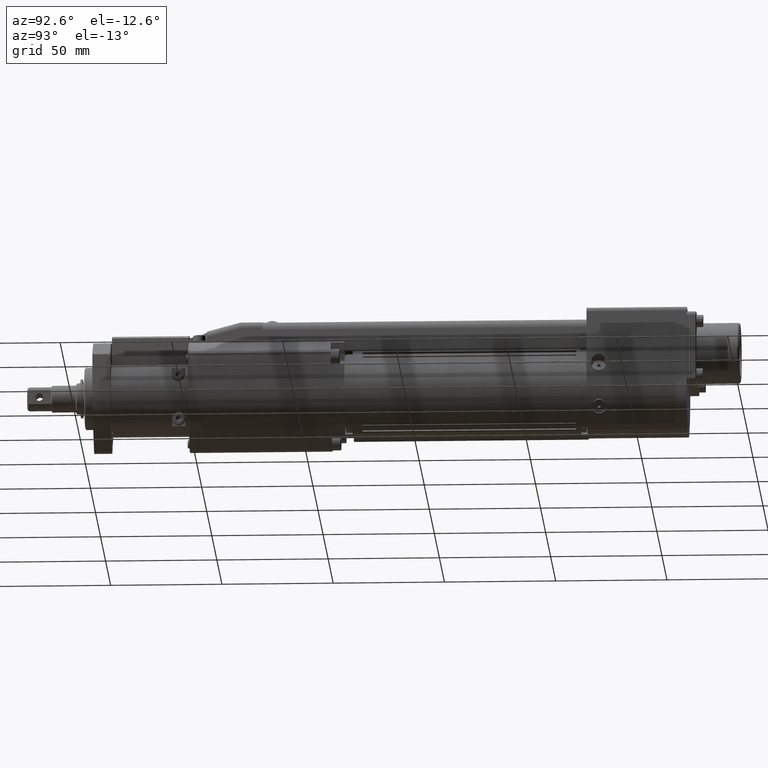
[diagram: clean part render]
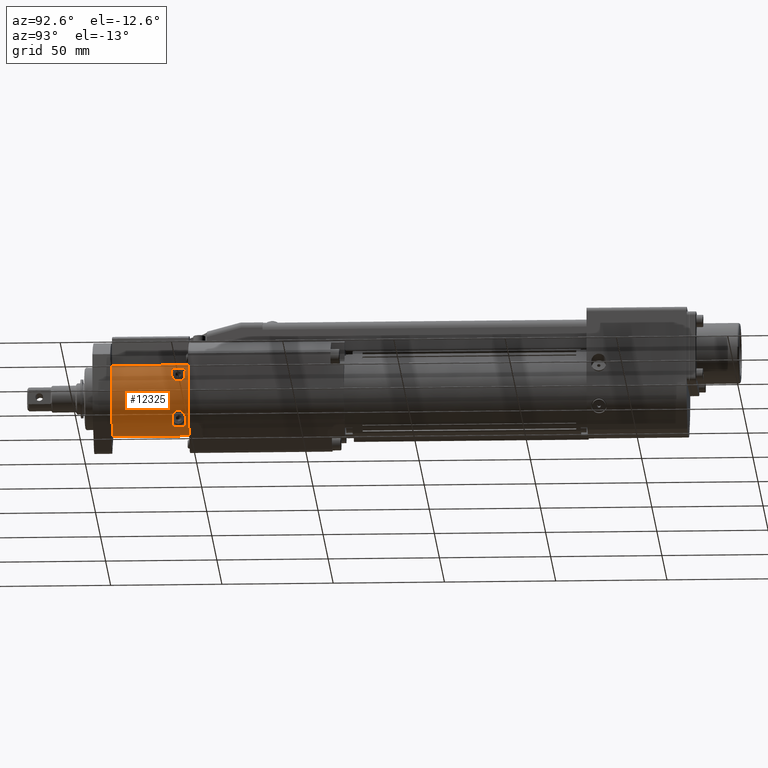
[diagram: same view with one face highlighted and labeled with its STEP entity id]
A machine part, auxiliary view. The second image highlights one B-rep face of the part: STEP entity #12325.
In plain terms, the highlighted cylindrical surface (partial cylindrical patch) has radius 17.5 mm, axis along (-0, 1, 0).
Its self-contained STEP definition (entity closure, byte-faithful):
#275=FACE_BOUND('',#2129,.T.);
#276=FACE_BOUND('',#2130,.T.);
#314=B_SPLINE_CURVE_WITH_KNOTS('',3,(#19529,#19530,#19531,#19532,#19533,
#19534,#19535,#19536,#19537,#19538,#19539,#19540,#19541,#19542,#19543,#19544,
#19545,#19546),.UNSPECIFIED.,.F.,.F.,(4,2,2,2,2,2,2,2,4),(0.593122453366662,
0.732736817292458,0.872351181218255,0.990238590093944,1.10812599896963,
1.21881461251213,1.32950322605462,1.47631867492946,1.6231341238043),
 .UNSPECIFIED.);
#315=B_SPLINE_CURVE_WITH_KNOTS('',3,(#19558,#19559,#19560,#19561,#19562,
#19563,#19564,#19565,#19566,#19567,#19568,#19569,#19570,#19571,#19572,#19573,
#19574,#19575,#19576),.UNSPECIFIED.,.F.,.F.,(4,2,2,2,3,2,2,2,4),(-0.465745547031507,
-0.345290531737387,-0.224835516443268,-0.112417758221634,0.,0.113876091804133,
0.227752183608267,0.346748738347812,0.465745293087357),.UNSPECIFIED.);
#628=CIRCLE('',#13280,17.5);
#649=CIRCLE('',#13346,17.5);
#650=CIRCLE('',#13348,17.5);
#652=CIRCLE('',#13352,17.5);
#653=CIRCLE('',#13354,17.5);
#654=CIRCLE('',#13355,17.5);
#967=CYLINDRICAL_SURFACE('',#13353,17.5);
#1359=FACE_OUTER_BOUND('',#2128,.T.);
#2128=EDGE_LOOP('',(#8972,#8973,#8974,#8975));
#2129=EDGE_LOOP('',(#8976,#8977,#8978,#8979));
#2130=EDGE_LOOP('',(#8980,#8981,#8982,#8983));
#2576=LINE('',#17578,#3610);
#3066=LINE('',#19554,#4100);
#3067=LINE('',#19557,#4101);
#3068=LINE('',#19579,#4102);
#3610=VECTOR('',#14043,10.);
#4100=VECTOR('',#15689,10.);
#4101=VECTOR('',#15692,10.);
#4102=VECTOR('',#15695,10.);
#4657=VERTEX_POINT('',#17575);
#4658=VERTEX_POINT('',#17577);
#5202=VERTEX_POINT('',#19341);
#5203=VERTEX_POINT('',#19343);
#5250=VERTEX_POINT('',#19515);
#5251=VERTEX_POINT('',#19519);
#5254=VERTEX_POINT('',#19526);
#5255=VERTEX_POINT('',#19528);
#5256=VERTEX_POINT('',#19549);
#5257=VERTEX_POINT('',#19553);
#5258=VERTEX_POINT('',#19555);
#5259=VERTEX_POINT('',#19577);
#5771=EDGE_CURVE('',#4657,#4658,#2576,.T.);
#6525=EDGE_CURVE('',#5202,#5203,#628,.T.);
#6611=EDGE_CURVE('',#4658,#5250,#649,.T.);
#6613=EDGE_CURVE('',#5251,#4657,#650,.T.);
#6617=EDGE_CURVE('',#5254,#5255,#314,.T.);
#6619=EDGE_CURVE('',#5256,#5254,#652,.T.);
#6621=EDGE_CURVE('',#5257,#5202,#3066,.T.);
#6622=EDGE_CURVE('',#5258,#5257,#653,.T.);
#6623=EDGE_CURVE('',#5258,#5203,#3067,.T.);
#6624=EDGE_CURVE('',#5250,#5251,#315,.T.);
#6625=EDGE_CURVE('',#5255,#5259,#654,.T.);
#6626=EDGE_CURVE('',#5259,#5256,#3068,.T.);
#8972=ORIENTED_EDGE('',*,*,#6621,.F.);
#8973=ORIENTED_EDGE('',*,*,#6622,.F.);
#8974=ORIENTED_EDGE('',*,*,#6623,.T.);
#8975=ORIENTED_EDGE('',*,*,#6525,.F.);
#8976=ORIENTED_EDGE('',*,*,#6624,.F.);
#8977=ORIENTED_EDGE('',*,*,#6611,.F.);
#8978=ORIENTED_EDGE('',*,*,#5771,.F.);
#8979=ORIENTED_EDGE('',*,*,#6613,.F.);
#8980=ORIENTED_EDGE('',*,*,#6625,.F.);
#8981=ORIENTED_EDGE('',*,*,#6617,.F.);
#8982=ORIENTED_EDGE('',*,*,#6619,.F.);
#8983=ORIENTED_EDGE('',*,*,#6626,.F.);
#12325=ADVANCED_FACE('',(#1359,#275,#276),#967,.T.);
#13280=AXIS2_PLACEMENT_3D('',#19344,#15477,#15478);
#13346=AXIS2_PLACEMENT_3D('',#19516,#15668,#15669);
#13348=AXIS2_PLACEMENT_3D('',#19520,#15673,#15674);
#13352=AXIS2_PLACEMENT_3D('',#19550,#15684,#15685);
#13353=AXIS2_PLACEMENT_3D('',#19552,#15687,#15688);
#13354=AXIS2_PLACEMENT_3D('',#19556,#15690,#15691);
#13355=AXIS2_PLACEMENT_3D('',#19578,#15693,#15694);
#14043=DIRECTION('',(3.46944695195361E-17,-1.,-2.01894342626943E-17));
#15477=DIRECTION('center_axis',(0.,1.,0.));
#15478=DIRECTION('ref_axis',(0.702857142857143,3.87466268240358E-17,-0.711331031752934));
#15668=DIRECTION('center_axis',(-3.46944695195362E-17,1.,-2.01855170662337E-16));
#15669=DIRECTION('ref_axis',(0.702857142857143,3.87466268240358E-17,-0.711331031752934));
#15673=DIRECTION('center_axis',(3.46944695195362E-17,-1.,3.12877473124853E-16));
#15674=DIRECTION('ref_axis',(0.702857142857143,3.87466268240358E-17,-0.711331031752934));
#15684=DIRECTION('center_axis',(3.46944695195363E-17,-1.,5.34922078049884E-16));
#15685=DIRECTION('ref_axis',(0.702857142857143,3.87466268240358E-17,-0.711331031752934));
#15687=DIRECTION('center_axis',(-3.46944695195361E-17,1.,2.01894342626943E-17));
#15688=DIRECTION('ref_axis',(0.702857142857143,3.87466268240358E-17,-0.711331031752934));
#15689=DIRECTION('',(-3.46944695195361E-17,1.,2.01894342626943E-17));
#15690=DIRECTION('center_axis',(3.46944695195361E-17,-1.,-2.01894342626943E-17));
#15691=DIRECTION('ref_axis',(0.702857142857143,3.87466268240358E-17,-0.711331031752934));
#15692=DIRECTION('',(-3.46944695195361E-17,1.,2.01894342626943E-17));
#15693=DIRECTION('center_axis',(-3.46944695195361E-17,1.,2.01894342626943E-17));
#15694=DIRECTION('ref_axis',(0.702857142857143,3.87466268240358E-17,-0.711331031752934));
#15695=DIRECTION('',(-3.46944695195361E-17,1.,2.01894342626943E-17));
#17575=CARTESIAN_POINT('',(14.,45.5,10.5));
#17577=CARTESIAN_POINT('',(14.,39.5,10.5));
#17578=CARTESIAN_POINT('',(14.,12.5,10.5));
#19341=CARTESIAN_POINT('',(12.3,47.,12.4482930556763));
#19343=CARTESIAN_POINT('',(0.300000000000024,47.,-17.4974283824795));
#19344=CARTESIAN_POINT('Origin',(2.77555756156289E-14,47.,2.33731163078971E-16));
#19515=CARTESIAN_POINT('',(16.0390149323455,39.5,7.));
#19516=CARTESIAN_POINT('Origin',(2.80157841370254E-14,39.5,8.23104061087636E-17));
#19519=CARTESIAN_POINT('',(16.0390149323455,45.5,7.));
#19520=CARTESIAN_POINT('Origin',(2.78076173199082E-14,45.5,2.0344701168493E-16));
#19526=CARTESIAN_POINT('',(12.737739202857,45.5,-12.));
#19528=CARTESIAN_POINT('',(12.737739202857,39.5,-12.));
#19529=CARTESIAN_POINT('Ctrl Pts',(12.737739202857,45.5,-12.));
#19530=CARTESIAN_POINT('Ctrl Pts',(13.0568577489731,45.5,-11.6612625987315));
#19531=CARTESIAN_POINT('Ctrl Pts',(13.388375143957,45.4394265194131,-11.2795137070453));
#19532=CARTESIAN_POINT('Ctrl Pts',(13.9810249050007,45.1487708471428,-10.5359840172819));
#19533=CARTESIAN_POINT('Ctrl Pts',(14.2425258971573,44.9175740760073,-10.174933388888));
#19534=CARTESIAN_POINT('Ctrl Pts',(14.6161987054871,44.3711699728817,-9.62852928576239));
#19535=CARTESIAN_POINT('Ctrl Pts',(14.7642572732064,44.0443375174269,-9.39686144415425));
#19536=CARTESIAN_POINT('Ctrl Pts',(14.9598126959281,43.3052195385203,-9.08230694812046));
#19537=CARTESIAN_POINT('Ctrl Pts',(15.0083310198037,42.8929580295856,-9.));
#19538=CARTESIAN_POINT('Ctrl Pts',(15.0083310198037,42.1310379548584,-9.));
#19539=CARTESIAN_POINT('Ctrl Pts',(14.9654351358068,41.7416566613897,-9.0726602675648));
#19540=CARTESIAN_POINT('Ctrl Pts',(14.7910941088554,41.0357211481776,-9.35419424728931));
#19541=CARTESIAN_POINT('Ctrl Pts',(14.6588832619237,40.7191442555167,-9.56253617057018));
#19542=CARTESIAN_POINT('Ctrl Pts',(14.3025904342903,40.1437395392454,-10.0904795300501));
#19543=CARTESIAN_POINT('Ctrl Pts',(14.0349130200958,39.8883721713524,-10.4650151520046));
#19544=CARTESIAN_POINT('Ctrl Pts',(13.4205339618168,39.5670236943808,-11.2420903902688));
#19545=CARTESIAN_POINT('Ctrl Pts',(13.0733173717138,39.5,-11.6437910669109));
#19546=CARTESIAN_POINT('Ctrl Pts',(12.737739202857,39.5,-12.));
#19549=CARTESIAN_POINT('',(9.00000000000002,45.5,-15.0083310198036));
#19550=CARTESIAN_POINT('Origin',(2.78076173199082E-14,45.5,2.0344701168493E-16));
#19552=CARTESIAN_POINT('Origin',(2.89525348140529E-14,12.5,-4.62804318983984E-16));
#19553=CARTESIAN_POINT('',(12.3,12.5,12.4482930556763));
#19554=CARTESIAN_POINT('',(12.3,12.5,12.4482930556763));
#19555=CARTESIAN_POINT('',(0.300000000000025,12.5,-17.4974283824795));
#19556=CARTESIAN_POINT('Origin',(2.89525348140529E-14,12.5,-4.62804318983984E-16));
#19557=CARTESIAN_POINT('',(0.300000000000025,12.5,-17.4974283824795));
#19558=CARTESIAN_POINT('Ctrl Pts',(16.0390149323455,39.5,7.00000000000001));
#19559=CARTESIAN_POINT('Ctrl Pts',(16.1996216194043,39.5,6.63200384971843));
#19560=CARTESIAN_POINT('Ctrl Pts',(16.3578915439738,39.5720329967963,6.23115927700062));
#19561=CARTESIAN_POINT('Ctrl Pts',(16.6239123882701,39.8808191443499,5.48210710667823));
#19562=CARTESIAN_POINT('Ctrl Pts',(16.7323406001072,40.1179726753953,5.13430535749548));
#19563=CARTESIAN_POINT('Ctrl Pts',(16.8863366753858,40.6610209265371,4.60144857914899));
#19564=CARTESIAN_POINT('Ctrl Pts',(16.9449126841093,40.9940143625727,4.37537965135178));
#19565=CARTESIAN_POINT('Ctrl Pts',(17.0197364418251,41.7261672048157,4.07462684285697));
#19566=CARTESIAN_POINT('Ctrl Pts',(17.0367250374008,42.1252741392612,4.));
#19567=CARTESIAN_POINT('Ctrl Pts',(17.0367250374008,42.5,4.));
#19568=CARTESIAN_POINT('Ctrl Pts',(17.0367250374008,42.8795869726805,4.));
#19569=CARTESIAN_POINT('Ctrl Pts',(17.0193073335317,43.2835153413794,4.07656104509617));
#19570=CARTESIAN_POINT('Ctrl Pts',(16.9425982693487,44.0229476456597,4.38446535960484));
#19571=CARTESIAN_POINT('Ctrl Pts',(16.8825288175431,44.3583937802748,4.61575309315547));
#19572=CARTESIAN_POINT('Ctrl Pts',(16.7264467290663,44.8960694562551,5.1534287691358));
#19573=CARTESIAN_POINT('Ctrl Pts',(16.61837894628,45.1279375137473,5.49858595656041));
#19574=CARTESIAN_POINT('Ctrl Pts',(16.354315923565,45.4297016935987,6.24029784983702));
#19575=CARTESIAN_POINT('Ctrl Pts',(16.1976770053315,45.5,6.63645952031139));
#19576=CARTESIAN_POINT('Ctrl Pts',(16.0390149323455,45.5,7.));
#19577=CARTESIAN_POINT('',(9.00000000000002,39.5,-15.0083310198036));
#19578=CARTESIAN_POINT('Origin',(2.80157841370254E-14,39.5,8.23104061087636E-17));
#19579=CARTESIAN_POINT('',(9.00000000000002,12.5,-15.0083310198036));